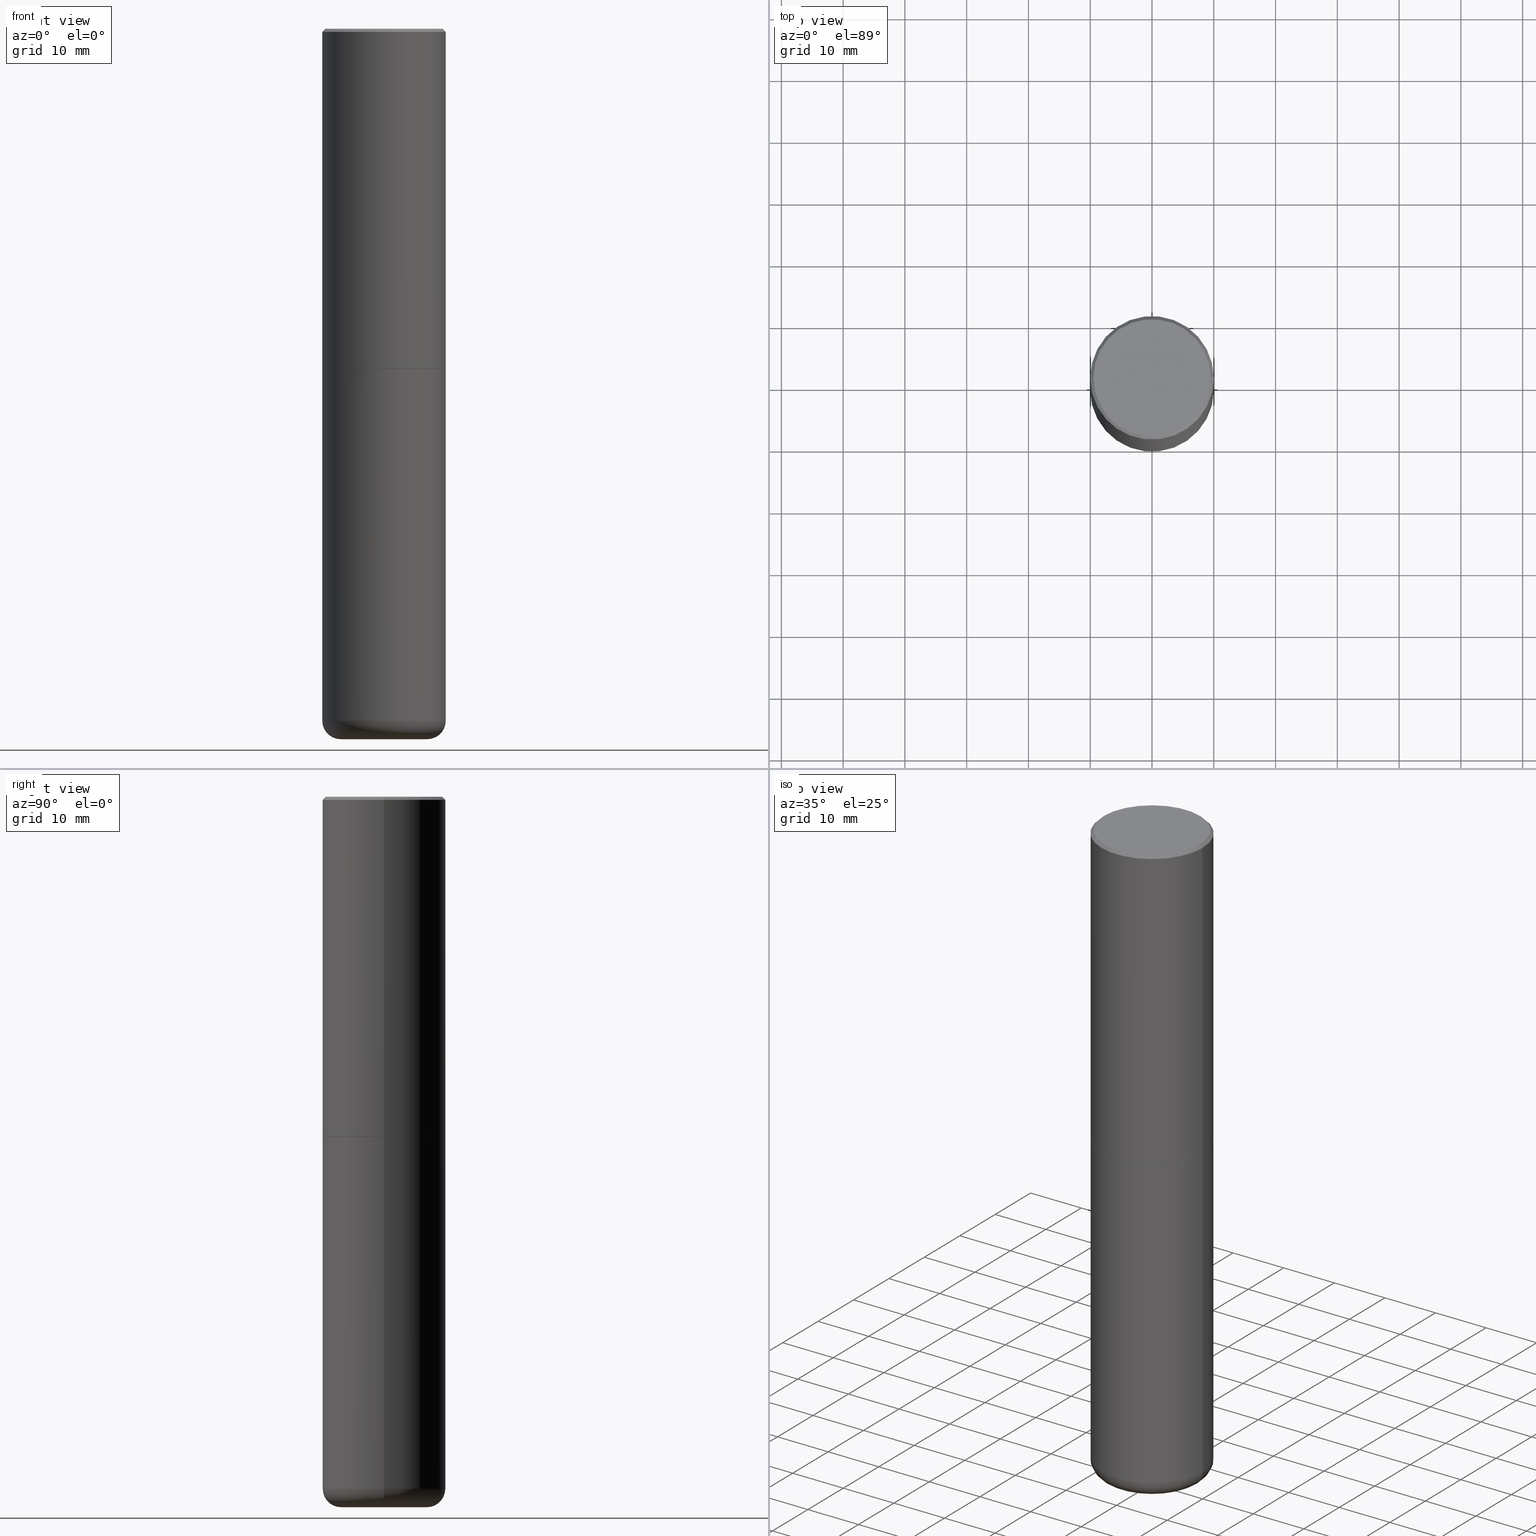
[diagram: canonical four-view strip — front | top / right | iso, engineering-drawing reading convention]
A machine part, canonical four-view strip (front | top / right | iso — engineering-drawing reading convention). The complete STEP part file that produces these views, byte-faithful:
ISO-10303-21;
HEADER;
FILE_DESCRIPTION (( 'STEP AP203' ),
    '1' );
FILE_NAME ('74658.STEP',
    '2024-03-06T15:54:08',
    ( '' ),
    ( '' ),
    'SwSTEP 2.0',
    'SolidWorks 2023',
    '' );
FILE_SCHEMA (( 'CONFIG_CONTROL_DESIGN' ));
ENDSEC;

DATA;
#1 = VECTOR ( 'NONE', #80, 39.37007874015748854 ) ;
#2 = VERTEX_POINT ( 'NONE', #106 ) ;
#3 = DATE_TIME_ROLE ( 'creation_date' ) ;
#4 = ORIENTED_EDGE ( 'NONE', *, *, #368, .F. ) ;
#5 = DIRECTION ( 'NONE',  ( -2.445468806185136597E-29, 3.491481338843145583E-15, 1.000000000000000000 ) ) ;
#6 = PERSON_AND_ORGANIZATION ( #246, #288 ) ;
#7 = CARTESIAN_POINT ( 'NONE',  ( 5.295418152913293224E-29, -7.560453691130945845E-15, -2.165399999999999547 ) ) ;
#8 = VERTEX_POINT ( 'NONE', #70 ) ;
#9 = EDGE_CURVE ( 'NONE', #132, #200, #72, .T. ) ;
#10 = CALENDAR_DATE ( 2024, 6, 3 ) ;
#11 = ORIENTED_EDGE ( 'NONE', *, *, #47, .T. ) ;
#12 = DIRECTION ( 'NONE',  ( -1.000000000000000000, 6.982962677686265922E-15, -4.876176775795935793E-29 ) ) ;
#13 = PERSON_AND_ORGANIZATION_ROLE ( 'design_owner' ) ;
#14 = CARTESIAN_POINT ( 'NONE',  ( 1.078329470087335798E-28, -1.539568696362884818E-14, -4.409499999999999531 ) ) ;
#15 = EDGE_CURVE ( 'NONE', #293, #333, #148, .T. ) ;
#16 =( NAMED_UNIT ( * ) PLANE_ANGLE_UNIT ( ) SI_UNIT ( $, .RADIAN. ) );
#17 = CARTESIAN_POINT ( 'NONE',  ( 0.3926999999999999935, -1.030266313465834305E-14, -2.165399999999999991 ) ) ;
#18 = DIRECTION ( 'NONE',  ( -2.445468806185136597E-29, 3.491481338843145583E-15, 1.000000000000000000 ) ) ;
#19 = CONICAL_SURFACE ( 'NONE', #112, 0.3926999999999999935, 0.7853981633974141952 ) ;
#20 = DIRECTION ( 'NONE',  ( 1.000000000000000000, -6.982962677686266711E-15, 4.875705233642009010E-29 ) ) ;
#21 = DIRECTION ( 'NONE',  ( 1.000000000000000000, -6.982962677686265922E-15, 4.876176775795935793E-29 ) ) ;
#22 = ORIENTED_EDGE ( 'NONE', *, *, #146, .T. ) ;
#23 = AXIS2_PLACEMENT_3D ( 'NONE', #234, #392, #356 ) ;
#24 = DIRECTION ( 'NONE',  ( 1.000000000000000000, -6.982962677686265133E-15, 0.000000000000000000 ) ) ;
#25 = ORIENTED_EDGE ( 'NONE', *, *, #313, .F. ) ;
#26 = DIRECTION ( 'NONE',  ( -6.982962677686266711E-15, -1.000000000000000000, 3.491481338843145583E-15 ) ) ;
#27 = CARTESIAN_POINT ( 'NONE',  ( 1.078329470087335798E-28, -1.539568696362884818E-14, -4.409499999999999531 ) ) ;
#28 = CC_DESIGN_PERSON_AND_ORGANIZATION_ASSIGNMENT ( #291, #390, ( #412 ) ) ;
#29 = DIRECTION ( 'NONE',  ( -2.445468806185136597E-29, 3.491481338843145583E-15, 1.000000000000000000 ) ) ;
#30 = CC_DESIGN_APPROVAL ( #160, ( #250 ) ) ;
#31 = ORIENTED_EDGE ( 'NONE', *, *, #146, .F. ) ;
#32 = CARTESIAN_POINT ( 'NONE',  ( 1.078329470087335798E-28, -1.539568696362884818E-14, -4.409499999999999531 ) ) ;
#33 = VERTEX_POINT ( 'NONE', #214 ) ;
#34 = CARTESIAN_POINT ( 'NONE',  ( 0.3937000000000001609, -2.749192406205084400E-15, 1.919750796630860732E-29 ) ) ;
#35 = ORIENTED_EDGE ( 'NONE', *, *, #76, .T. ) ;
#36 = ORIENTED_EDGE ( 'NONE', *, *, #405, .T. ) ;
#37 = APPLICATION_CONTEXT ( 'configuration controlled 3d designs of mechanical parts and assemblies' ) ;
#38 = CARTESIAN_POINT ( 'NONE',  ( 5.292972684107107621E-29, -7.556962209792102838E-15, -2.164399999999999658 ) ) ;
#39 = CARTESIAN_POINT ( 'NONE',  ( 5.295418152913294345E-29, -7.560453691130947423E-15, -2.165399999999999991 ) ) ;
#40 = DIRECTION ( 'NONE',  ( -2.445468806185136877E-29, 3.491481338843145188E-15, 1.000000000000000000 ) ) ;
#41 = CARTESIAN_POINT ( 'NONE',  ( 5.295418152913294345E-29, -7.560453691130947423E-15, -2.165399999999999991 ) ) ;
#42 = SHAPE_DEFINITION_REPRESENTATION ( #261, #406 ) ;
#43 = FACE_OUTER_BOUND ( 'NONE', #385, .T. ) ;
#44 = AXIS2_PLACEMENT_3D ( 'NONE', #379, #223, #24 ) ;
#45 = LINE ( 'NONE', #109, #345 ) ;
#46 = DIRECTION ( 'NONE',  ( 1.000000000000000000, -6.982962677686265133E-15, 0.000000000000000000 ) ) ;
#47 = EDGE_CURVE ( 'NONE', #255, #33, #178, .T. ) ;
#48 = DIRECTION ( 'NONE',  ( -2.445468806185136877E-29, 3.491481338843145188E-15, 1.000000000000000000 ) ) ;
#49 = DIRECTION ( 'NONE',  ( 1.000000000000000000, -6.982962677686266711E-15, 4.876176775795935793E-29 ) ) ;
#50 = VECTOR ( 'NONE', #338, 39.37007874015748854 ) ;
#51 = LOCAL_TIME ( 10, 54, 8.000000000000000000, #339 ) ;
#52 = FACE_OUTER_BOUND ( 'NONE', #336, .T. ) ;
#53 = ORIENTED_EDGE ( 'NONE', *, *, #170, .T. ) ;
#54 = ADVANCED_FACE ( 'NONE', ( #82 ), #198, .T. ) ;
#55 = VECTOR ( 'NONE', #48, 39.37007874015748143 ) ;
#56 = DIRECTION ( 'NONE',  ( 1.000000000000000000, -6.982962677686265133E-15, 0.000000000000000000 ) ) ;
#57 = DIRECTION ( 'NONE',  ( -2.445468806185136597E-29, 3.491481338843145583E-15, 1.000000000000000000 ) ) ;
#58 = CC_DESIGN_PERSON_AND_ORGANIZATION_ASSIGNMENT ( #177, #142, ( #412 ) ) ;
#59 = ORIENTED_EDGE ( 'NONE', *, *, #405, .F. ) ;
#60 = PERSON_AND_ORGANIZATION_ROLE ( 'classification_officer' ) ;
#61 = CIRCLE ( 'NONE', #300, 0.1180999999999997191 ) ;
#62 = CIRCLE ( 'NONE', #149, 0.3937000000000002720 ) ;
#63 = DIRECTION ( 'NONE',  ( 0.7071067811865469066, -7.319954787623252890E-15, -0.7071067811865479058 ) ) ;
#64 = CARTESIAN_POINT ( 'NONE',  ( 0.2756000000000000116, -1.773253542371655569E-14, -4.527599999999998737 ) ) ;
#65 = ORIENTED_EDGE ( 'NONE', *, *, #151, .F. ) ;
#66 = ORIENTED_EDGE ( 'NONE', *, *, #233, .F. ) ;
#67 = DATE_TIME_ROLE ( 'classification_date' ) ;
#68 = ADVANCED_FACE ( 'NONE', ( #52 ), #378, .T. ) ;
#69 = AXIS2_PLACEMENT_3D ( 'NONE', #295, #5, #298 ) ;
#70 = CARTESIAN_POINT ( 'NONE',  ( 0.3936999999999998834, -1.814487936983393140E-14, -4.409499999999999531 ) ) ;
#71 = APPROVAL_ROLE ( '' ) ;
#72 = LINE ( 'NONE', #211, #193 ) ;
#73 = DIRECTION ( 'NONE',  ( -1.000000000000000000, 6.982962677686265922E-15, 0.000000000000000000 ) ) ;
#74 = DATE_AND_TIME ( #304, #51 ) ;
#75 = EDGE_CURVE ( 'NONE', #2, #132, #61, .T. ) ;
#76 = EDGE_CURVE ( 'NONE', #8, #132, #394, .T. ) ;
#77 = DIRECTION ( 'NONE',  ( 1.000000000000000000, -6.982962677686265922E-15, 0.000000000000000000 ) ) ;
#78 = SECURITY_CLASSIFICATION_LEVEL ( 'unclassified' ) ;
#79 =( NAMED_UNIT ( * ) SI_UNIT ( $, .STERADIAN. ) SOLID_ANGLE_UNIT ( ) );
#80 = DIRECTION ( 'NONE',  ( 0.7071067811865232589, -2.468850131082003836E-15, 0.7071067811865715536 ) ) ;
#81 = AXIS2_PLACEMENT_3D ( 'NONE', #41, #371, #46 ) ;
#82 = FACE_OUTER_BOUND ( 'NONE', #393, .T. ) ;
#83 = CARTESIAN_POINT ( 'NONE',  ( 1.107210456688382074E-28, -1.580803090974622074E-14, -4.527599999999998737 ) ) ;
#84 = ADVANCED_FACE ( 'NONE', ( #89 ), #195, .T. ) ;
#85 = DIRECTION ( 'NONE',  ( -2.445468806185136597E-29, 3.491481338843145583E-15, 1.000000000000000000 ) ) ;
#86 = CIRCLE ( 'NONE', #172, 0.3937000000000000499 ) ;
#87 = EDGE_LOOP ( 'NONE', ( #389, #236, #273, #354 ) ) ;
#88 = DIRECTION ( 'NONE',  ( 1.000000000000000000, -6.982962677686265133E-15, 0.000000000000000000 ) ) ;
#89 = FACE_OUTER_BOUND ( 'NONE', #140, .T. ) ;
#90 = APPROVAL_DATE_TIME ( #199, #160 ) ;
#91 = DIRECTION ( 'NONE',  ( 1.000000000000000000, -6.982962677686265133E-15, 0.000000000000000000 ) ) ;
#92 = CARTESIAN_POINT ( 'NONE',  ( -0.3737000000000000322, 2.644447966039789058E-15, -6.402768735152454409E-17 ) ) ;
#93 = AXIS2_PLACEMENT_3D ( 'NONE', #290, #118, #380 ) ;
#94 = CIRCLE ( 'NONE', #44, 0.3926999999999999935 ) ;
#95 = VERTEX_POINT ( 'NONE', #103 ) ;
#96 = VERTEX_POINT ( 'NONE', #358 ) ;
#97 = DIRECTION ( 'NONE',  ( -2.445468806185136597E-29, 3.491481338843145583E-15, 1.000000000000000000 ) ) ;
#98 = COORDINATED_UNIVERSAL_TIME_OFFSET ( 5, 0, .BEHIND. ) ;
#99 = ORIENTED_EDGE ( 'NONE', *, *, #110, .F. ) ;
#100 = PERSON_AND_ORGANIZATION_ROLE ( 'creator' ) ;
#101 = CC_DESIGN_APPROVAL ( #229, ( #412 ) ) ;
#102 = EDGE_LOOP ( 'NONE', ( #25, #11, #129, #277 ) ) ;
#103 = CARTESIAN_POINT ( 'NONE',  ( -0.3937000000000000499, 2.679362779428219918E-15, -0.02000000000000008715 ) ) ;
#104 = DESIGN_CONTEXT ( 'detailed design', #37, 'design' ) ;
#105 =( CONVERSION_BASED_UNIT ( 'INCH', #276 ) LENGTH_UNIT ( ) NAMED_UNIT ( #145 ) );
#106 = CARTESIAN_POINT ( 'NONE',  ( -0.2756000000000000116, -1.322402767146636311E-14, -4.527599999999998737 ) ) ;
#107 = PLANE ( 'NONE',  #312 ) ;
#108 = PERSON_AND_ORGANIZATION ( #246, #288 ) ;
#109 = CARTESIAN_POINT ( 'NONE',  ( 0.3937000000000000499, -2.749192406205083217E-15, 1.919750796630860172E-29 ) ) ;
#110 = EDGE_CURVE ( 'NONE', #95, #33, #117, .T. ) ;
#111 = DIRECTION ( 'NONE',  ( -2.445468806185136597E-29, 3.491481338843145583E-15, 1.000000000000000000 ) ) ;
#112 = AXIS2_PLACEMENT_3D ( 'NONE', #122, #256, #88 ) ;
#113 = DIRECTION ( 'NONE',  ( -2.445468806185136597E-29, 3.491481338843145583E-15, 1.000000000000000000 ) ) ;
#114 = EDGE_CURVE ( 'NONE', #171, #366, #381, .T. ) ;
#115 = DIRECTION ( 'NONE',  ( -2.445468806185136597E-29, 3.491481338843145583E-15, 1.000000000000000000 ) ) ;
#116 = CARTESIAN_POINT ( 'NONE',  ( 5.292972684107107621E-29, -7.556962209792102838E-15, -2.164399999999999658 ) ) ;
#117 = CIRCLE ( 'NONE', #181, 0.3937000000000000499 ) ;
#118 = DIRECTION ( 'NONE',  ( -2.445468806185136597E-29, 3.491481338843145583E-15, 1.000000000000000000 ) ) ;
#119 = APPLICATION_CONTEXT ( 'configuration controlled 3d designs of mechanical parts and assemblies' ) ;
#120 = CARTESIAN_POINT ( 'NONE',  ( -0.2756000000000000116, -1.343743118387401317E-14, -4.409499999999999531 ) ) ;
#121 = CC_DESIGN_PERSON_AND_ORGANIZATION_ASSIGNMENT ( #230, #100, ( #250 ) ) ;
#122 = CARTESIAN_POINT ( 'NONE',  ( 5.295418152913294345E-29, -7.560453691130947423E-15, -2.165399999999999991 ) ) ;
#123 = DIRECTION ( 'NONE',  ( 1.000000000000000000, -6.982962677686262766E-15, 0.000000000000000000 ) ) ;
#124 = ADVANCED_FACE ( 'NONE', ( #176 ), #201, .T. ) ;
#125 = AXIS2_PLACEMENT_3D ( 'NONE', #135, #330, #73 ) ;
#126 = VERTEX_POINT ( 'NONE', #92 ) ;
#127 = ORIENTED_EDGE ( 'NONE', *, *, #407, .F. ) ;
#128 = FACE_OUTER_BOUND ( 'NONE', #87, .T. ) ;
#129 = ORIENTED_EDGE ( 'NONE', *, *, #257, .T. ) ;
#130 = TOROIDAL_SURFACE ( 'NONE', #248, 0.2756000000000000116, 0.1180999999999997468 ) ;
#131 = AXIS2_PLACEMENT_3D ( 'NONE', #83, #113, #374 ) ;
#132 = VERTEX_POINT ( 'NONE', #215 ) ;
#133 = DIRECTION ( 'NONE',  ( 1.000000000000000000, 0.000000000000000000, 0.000000000000000000 ) ) ;
#134 = ORIENTED_EDGE ( 'NONE', *, *, #383, .T. ) ;
#135 = CARTESIAN_POINT ( 'NONE',  ( 4.890937612370294178E-31, -6.982962677686321191E-17, -0.02000000000000008715 ) ) ;
#136 = APPROVAL_DATE_TIME ( #74, #346 ) ;
#137 = PRODUCT ( '74658', '74658', '', ( #174 ) ) ;
#138 = EDGE_LOOP ( 'NONE', ( #297, #205 ) ) ;
#139 = DIRECTION ( 'NONE',  ( 1.000000000000000000, -6.982962677686265922E-15, 0.000000000000000000 ) ) ;
#140 = EDGE_LOOP ( 'NONE', ( #262, #22, #325, #127 ) ) ;
#141 = CARTESIAN_POINT ( 'NONE',  ( -0.3937000000000003830, -1.015989167596963746E-15, -2.164399999999999658 ) ) ;
#142 = PERSON_AND_ORGANIZATION_ROLE ( 'design_supplier' ) ;
#143 = LINE ( 'NONE', #150, #266 ) ;
#144 = CARTESIAN_POINT ( 'NONE',  ( 1.565777121502829671E-45, -2.235514755570671047E-31, -6.402768735150616610E-17 ) ) ;
#145 = DIMENSIONAL_EXPONENTS ( 1.000000000000000000, 0.000000000000000000, 0.000000000000000000, 0.000000000000000000, 0.000000000000000000, 0.000000000000000000, 0.000000000000000000 ) ;
#146 = EDGE_CURVE ( 'NONE', #132, #8, #340, .T. ) ;
#147 = CARTESIAN_POINT ( 'NONE',  ( 1.733990391732979190E-28, -6.832185498923057657E-15, -4.527599999999998737 ) ) ;
#148 = CIRCLE ( 'NONE', #322, 0.3937000000000002720 ) ;
#149 = AXIS2_PLACEMENT_3D ( 'NONE', #116, #350, #317 ) ;
#150 = CARTESIAN_POINT ( 'NONE',  ( -0.3937000000000000499, 2.679362779428219918E-15, -0.02000000000000008715 ) ) ;
#151 = EDGE_CURVE ( 'NONE', #167, #2, #209, .T. ) ;
#152 = ADVANCED_FACE ( 'NONE', ( #128 ), #188, .T. ) ;
#153 = APPLICATION_PROTOCOL_DEFINITION ( 'international standard', 'config_control_design', 1994, #119 ) ;
#154 = CARTESIAN_POINT ( 'NONE',  ( 5.295418152913293224E-29, -7.560453691130945845E-15, -2.165399999999999547 ) ) ;
#155 = ORIENTED_EDGE ( 'NONE', *, *, #257, .F. ) ;
#156 = AXIS2_PLACEMENT_3D ( 'NONE', #32, #302, #168 ) ;
#157 = APPROVAL_PERSON_ORGANIZATION ( #6, #229, #269 ) ;
#158 = EDGE_LOOP ( 'NONE', ( #65, #415 ) ) ;
#159 = DIRECTION ( 'NONE',  ( -2.445468806185136597E-29, 3.491481338843145583E-15, 1.000000000000000000 ) ) ;
#160 = APPROVAL ( #370, 'UNSPECIFIED' ) ;
#161 = DIRECTION ( 'NONE',  ( 0.000000000000000000, 0.000000000000000000, 1.000000000000000000 ) ) ;
#162 = APPLICATION_PROTOCOL_DEFINITION ( 'international standard', 'config_control_design', 1994, #37 ) ;
#163 = DIRECTION ( 'NONE',  ( 1.000000000000000000, -6.982962677686265922E-15, 4.876176775795935793E-29 ) ) ;
#164 = AXIS2_PLACEMENT_3D ( 'NONE', #27, #159, #123 ) ;
#165 = APPROVAL_PERSON_ORGANIZATION ( #274, #346, #334 ) ;
#166 = PERSON_AND_ORGANIZATION ( #246, #288 ) ;
#167 = VERTEX_POINT ( 'NONE', #64 ) ;
#168 = DIRECTION ( 'NONE',  ( 1.000000000000000000, -6.982962677686262766E-15, 0.000000000000000000 ) ) ;
#169 = ORIENTED_EDGE ( 'NONE', *, *, #289, .T. ) ;
#170 = EDGE_CURVE ( 'NONE', #293, #33, #204, .T. ) ;
#171 = VERTEX_POINT ( 'NONE', #418 ) ;
#172 = AXIS2_PLACEMENT_3D ( 'NONE', #251, #111, #77 ) ;
#173 = EDGE_LOOP ( 'NONE', ( #238, #327, #264, #301 ) ) ;
#174 = MECHANICAL_CONTEXT ( 'NONE', #119, 'mechanical' ) ;
#175 = DIRECTION ( 'NONE',  ( -2.445468806185136597E-29, 3.491481338843145583E-15, 1.000000000000000000 ) ) ;
#176 = FACE_OUTER_BOUND ( 'NONE', #102, .T. ) ;
#177 = PERSON_AND_ORGANIZATION ( #246, #288 ) ;
#178 = LINE ( 'NONE', #355, #308 ) ;
#179 = DIRECTION ( 'NONE',  ( -2.445468806185136877E-29, 3.491481338843145188E-15, 1.000000000000000000 ) ) ;
#180 = EDGE_CURVE ( 'NONE', #171, #333, #265, .T. ) ;
#181 = AXIS2_PLACEMENT_3D ( 'NONE', #212, #97, #139 ) ;
#182 = DIRECTION ( 'NONE',  ( -2.445468806185136597E-29, 3.491481338843145583E-15, 1.000000000000000000 ) ) ;
#183 = PLANE ( 'NONE',  #411 ) ;
#184 = ADVANCED_FACE ( 'NONE', ( #219 ), #130, .T. ) ;
#185 = LINE ( 'NONE', #309, #55 ) ;
#186 = PLANE ( 'NONE',  #283 ) ;
#187 = CARTESIAN_POINT ( 'NONE',  ( 1.565777121502829671E-45, -2.235514755570671047E-31, -6.402768735150616610E-17 ) ) ;
#188 = CONICAL_SURFACE ( 'NONE', #23, 0.3937000000000000499, 0.7853981633974476129 ) ;
#189 = LOCAL_TIME ( 10, 54, 8.000000000000000000, #352 ) ;
#190 = DIRECTION ( 'NONE',  ( -2.438088387897960049E-29, 3.491481338843145188E-15, 1.000000000000000000 ) ) ;
#191 = ORIENTED_EDGE ( 'NONE', *, *, #9, .T. ) ;
#192 = ADVANCED_FACE ( 'NONE', ( #311 ), #183, .F. ) ;
#193 = VECTOR ( 'NONE', #40, 39.37007874015748143 ) ;
#194 = CARTESIAN_POINT ( 'NONE',  ( 0.2756000000000000116, -1.732019147759918314E-14, -4.409499999999999531 ) ) ;
#195 = CYLINDRICAL_SURFACE ( 'NONE', #316, 0.3937000000000000499 ) ;
#196 = CARTESIAN_POINT ( 'NONE',  ( 5.295418152913294345E-29, -7.560453691130947423E-15, -2.165399999999999991 ) ) ;
#197 = ORIENTED_EDGE ( 'NONE', *, *, #15, .F. ) ;
#198 = CYLINDRICAL_SURFACE ( 'NONE', #93, 0.3937000000000000499 ) ;
#199 = DATE_AND_TIME ( #307, #267 ) ;
#200 = VERTEX_POINT ( 'NONE', #282 ) ;
#201 = CONICAL_SURFACE ( 'NONE', #125, 0.3937000000000000499, 0.7853981633974476129 ) ;
#202 = CC_DESIGN_SECURITY_CLASSIFICATION ( #388, ( #412 ) ) ;
#203 = ORIENTED_EDGE ( 'NONE', *, *, #114, .F. ) ;
#204 = LINE ( 'NONE', #34, #363 ) ;
#205 = ORIENTED_EDGE ( 'NONE', *, *, #313, .T. ) ;
#206 = ORIENTED_EDGE ( 'NONE', *, *, #353, .T. ) ;
#207 = DIRECTION ( 'NONE',  ( -2.445468806185136597E-29, 3.491481338843145583E-15, 1.000000000000000000 ) ) ;
#208 = PERSON_AND_ORGANIZATION ( #246, #288 ) ;
#209 = CIRCLE ( 'NONE', #69, 0.2756000000000000116 ) ;
#210 =( GEOMETRIC_REPRESENTATION_CONTEXT ( 3 ) GLOBAL_UNCERTAINTY_ASSIGNED_CONTEXT ( ( #231 ) ) GLOBAL_UNIT_ASSIGNED_CONTEXT ( ( #105, #16, #79 ) ) REPRESENTATION_CONTEXT ( 'NONE', 'WORKASPACE' ) );
#211 = CARTESIAN_POINT ( 'NONE',  ( -0.3937000000000000499, 2.797406750687514786E-15, -1.936584745033356735E-29 ) ) ;
#212 = CARTESIAN_POINT ( 'NONE',  ( 4.890937612370294178E-31, -6.982962677686321191E-17, -0.02000000000000008715 ) ) ;
#213 = ADVANCED_FACE ( 'NONE', ( #373 ), #275, .T. ) ;
#214 = CARTESIAN_POINT ( 'NONE',  ( 0.3937000000000000499, -2.770807688499515734E-15, -0.02000000000000008715 ) ) ;
#215 = CARTESIAN_POINT ( 'NONE',  ( -0.3936999999999998834, -1.259828021294133576E-14, -4.409499999999999531 ) ) ;
#216 = DIRECTION ( 'NONE',  ( 1.000000000000000000, -6.982962677686268288E-15, 4.883557194083112901E-29 ) ) ;
#217 = DATE_AND_TIME ( #237, #226 ) ;
#218 = CIRCLE ( 'NONE', #365, 0.1180999999999997191 ) ;
#219 = FACE_OUTER_BOUND ( 'NONE', #270, .T. ) ;
#220 = DIRECTION ( 'NONE',  ( 1.000000000000000000, -6.982962677686266711E-15, 4.875705233642009010E-29 ) ) ;
#221 = CARTESIAN_POINT ( 'NONE',  ( 0.3937000000000002720, -1.030615461599718763E-14, -2.164399999999999658 ) ) ;
#222 = CARTESIAN_POINT ( 'NONE',  ( 0.3926999999999999935, -1.030266313465834305E-14, -2.165399999999999991 ) ) ;
#223 = DIRECTION ( 'NONE',  ( -2.445468806185136597E-29, 3.491481338843145583E-15, 1.000000000000000000 ) ) ;
#224 = ORIENTED_EDGE ( 'NONE', *, *, #407, .T. ) ;
#225 = CARTESIAN_POINT ( 'NONE',  ( 0.000000000000000000, 0.000000000000000000, 0.000000000000000000 ) ) ;
#226 = LOCAL_TIME ( 10, 54, 8.000000000000000000, #98 ) ;
#227 = ADVANCED_FACE ( 'NONE', ( #43 ), #386, .T. ) ;
#228 = DIRECTION ( 'NONE',  ( -2.445468806185136597E-29, 3.491481338843145583E-15, 1.000000000000000000 ) ) ;
#229 = APPROVAL ( #244, 'UNSPECIFIED' ) ;
#230 = PERSON_AND_ORGANIZATION ( #246, #288 ) ;
#231 = UNCERTAINTY_MEASURE_WITH_UNIT (LENGTH_MEASURE( 1.000000000000000082E-05 ), #105, 'distance_accuracy_value', 'NONE');
#232 = EDGE_CURVE ( 'NONE', #126, #95, #143, .T. ) ;
#233 = EDGE_CURVE ( 'NONE', #8, #96, #45, .T. ) ;
#234 = CARTESIAN_POINT ( 'NONE',  ( 4.890937612370294178E-31, -6.982962677686321191E-17, -0.02000000000000008715 ) ) ;
#235 = ORIENTED_EDGE ( 'NONE', *, *, #410, .F. ) ;
#236 = ORIENTED_EDGE ( 'NONE', *, *, #271, .F. ) ;
#237 = CALENDAR_DATE ( 2024, 6, 3 ) ;
#238 = ORIENTED_EDGE ( 'NONE', *, *, #180, .F. ) ;
#239 = EDGE_CURVE ( 'NONE', #366, #293, #310, .T. ) ;
#240 = AXIS2_PLACEMENT_3D ( 'NONE', #154, #29, #56 ) ;
#241 = DIRECTION ( 'NONE',  ( 1.000000000000000000, -6.982962677686269077E-15, 0.000000000000000000 ) ) ;
#242 = DIRECTION ( 'NONE',  ( 1.000000000000000000, -6.982962677686265133E-15, 0.000000000000000000 ) ) ;
#243 = MANIFOLD_SOLID_BREP ( 'Body-Move/Copy2[1]', #348 ) ;
#244 = APPROVAL_STATUS ( 'not_yet_approved' ) ;
#245 = FACE_OUTER_BOUND ( 'NONE', #268, .T. ) ;
#246 = PERSON ( 'UNSPECIFIED', 'UNSPECIFIED', 'UNSPECIFIED', ('UNSPECIFIED'), ('UNSPECIFIED'), ('UNSPECIFIED') ) ;
#247 = DIRECTION ( 'NONE',  ( 1.000000000000000000, -6.982962677686268288E-15, 4.883557194083112901E-29 ) ) ;
#248 = AXIS2_PLACEMENT_3D ( 'NONE', #397, #115, #216 ) ;
#249 = AXIS2_PLACEMENT_3D ( 'NONE', #7, #272, #91 ) ;
#250 = PRODUCT_DEFINITION ( 'UNKNOWN', '', #412, #104 ) ;
#251 = CARTESIAN_POINT ( 'NONE',  ( 4.890937612370294178E-31, -6.982962677686321191E-17, -0.02000000000000008715 ) ) ;
#252 = CARTESIAN_POINT ( 'NONE',  ( 5.295418152913293224E-29, -7.560453691130945845E-15, -2.165399999999999547 ) ) ;
#253 = AXIS2_PLACEMENT_3D ( 'NONE', #39, #207, #242 ) ;
#254 = AXIS2_PLACEMENT_3D ( 'NONE', #344, #85, #49 ) ;
#255 = VERTEX_POINT ( 'NONE', #400 ) ;
#256 = DIRECTION ( 'NONE',  ( -2.445468806185136597E-29, 3.491481338843145583E-15, 1.000000000000000000 ) ) ;
#257 = EDGE_CURVE ( 'NONE', #33, #95, #86, .T. ) ;
#258 = DIRECTION ( 'NONE',  ( -1.000000000000000000, 7.105427357601005014E-15, 0.000000000000000000 ) ) ;
#259 = CIRCLE ( 'NONE', #131, 0.2756000000000000116 ) ;
#260 = COORDINATED_UNIVERSAL_TIME_OFFSET ( 5, 0, .BEHIND. ) ;
#261 = PRODUCT_DEFINITION_SHAPE ( 'NONE', 'NONE',  #250 ) ;
#262 = ORIENTED_EDGE ( 'NONE', *, *, #9, .F. ) ;
#263 = ORIENTED_EDGE ( 'NONE', *, *, #151, .T. ) ;
#264 = ORIENTED_EDGE ( 'NONE', *, *, #239, .T. ) ;
#265 = LINE ( 'NONE', #337, #50 ) ;
#266 = VECTOR ( 'NONE', #398, 39.37007874015748854 ) ;
#267 = LOCAL_TIME ( 10, 54, 8.000000000000000000, #260 ) ;
#268 = EDGE_LOOP ( 'NONE', ( #396, #357, #155, #362 ) ) ;
#269 = APPROVAL_ROLE ( '' ) ;
#270 = EDGE_LOOP ( 'NONE', ( #263, #417, #359, #59 ) ) ;
#271 = EDGE_CURVE ( 'NONE', #126, #255, #401, .T. ) ;
#272 = DIRECTION ( 'NONE',  ( -2.445468806185136597E-29, 3.491481338843145583E-15, 1.000000000000000000 ) ) ;
#273 = ORIENTED_EDGE ( 'NONE', *, *, #232, .T. ) ;
#274 = PERSON_AND_ORGANIZATION ( #246, #288 ) ;
#275 = TOROIDAL_SURFACE ( 'NONE', #292, 0.2756000000000000116, 0.1180999999999997468 ) ;
#276 = LENGTH_MEASURE_WITH_UNIT ( LENGTH_MEASURE( 0.02539999999999999897 ), #335 );
#277 = ORIENTED_EDGE ( 'NONE', *, *, #232, .F. ) ;
#278 = FACE_OUTER_BOUND ( 'NONE', #329, .T. ) ;
#279 = CALENDAR_DATE ( 2024, 6, 3 ) ;
#280 = CC_DESIGN_PERSON_AND_ORGANIZATION_ASSIGNMENT ( #108, #13, ( #137 ) ) ;
#281 = CARTESIAN_POINT ( 'NONE',  ( 2.609533152651357803E-15, 0.3737000000000000322, -1.336780420001436835E-15 ) ) ;
#282 = CARTESIAN_POINT ( 'NONE',  ( -0.3937000000000000499, -8.680663576692383017E-15, -2.165399999999999547 ) ) ;
#283 = AXIS2_PLACEMENT_3D ( 'NONE', #147, #284, #403 ) ;
#284 = DIRECTION ( 'NONE',  ( 2.438088387897960049E-29, -3.491481338843145188E-15, -1.000000000000000000 ) ) ;
#285 = FACE_OUTER_BOUND ( 'NONE', #416, .T. ) ;
#286 = ADVANCED_FACE ( 'NONE', ( #342 ), #186, .T. ) ;
#287 = CLOSED_SHELL ( 'NONE', ( #227, #296, #124, #152, #68, #399, #343, #192 ) ) ;
#288 = ORGANIZATION ( 'UNSPECIFIED', 'UNSPECIFIED', '' ) ;
#289 = EDGE_CURVE ( 'NONE', #2, #167, #259, .T. ) ;
#290 = CARTESIAN_POINT ( 'NONE',  ( 0.000000000000000000, 0.000000000000000000, 0.000000000000000000 ) ) ;
#291 = PERSON_AND_ORGANIZATION ( #246, #288 ) ;
#292 = AXIS2_PLACEMENT_3D ( 'NONE', #14, #182, #247 ) ;
#293 = VERTEX_POINT ( 'NONE', #221 ) ;
#294 = CIRCLE ( 'NONE', #240, 0.3937000000000000499 ) ;
#295 = CARTESIAN_POINT ( 'NONE',  ( 1.107210456688382074E-28, -1.580803090974622074E-14, -4.527599999999998737 ) ) ;
#296 = ADVANCED_FACE ( 'NONE', ( #245 ), #375, .T. ) ;
#297 = ORIENTED_EDGE ( 'NONE', *, *, #271, .T. ) ;
#298 = DIRECTION ( 'NONE',  ( 1.000000000000000000, -6.982962677686265922E-15, 0.000000000000000000 ) ) ;
#299 = EDGE_LOOP ( 'NONE', ( #305, #169, #36, #31 ) ) ;
#300 = AXIS2_PLACEMENT_3D ( 'NONE', #120, #319, #258 ) ;
#301 = ORIENTED_EDGE ( 'NONE', *, *, #353, .F. ) ;
#302 = DIRECTION ( 'NONE',  ( -2.445468806185136597E-29, 3.491481338843145583E-15, 1.000000000000000000 ) ) ;
#303 = ORIENTED_EDGE ( 'NONE', *, *, #239, .F. ) ;
#304 = CALENDAR_DATE ( 2024, 6, 3 ) ;
#305 = ORIENTED_EDGE ( 'NONE', *, *, #75, .F. ) ;
#306 = DIRECTION ( 'NONE',  ( 2.438088387897960049E-29, -3.491481338843145188E-15, -1.000000000000000000 ) ) ;
#307 = CALENDAR_DATE ( 2024, 6, 3 ) ;
#308 = VECTOR ( 'NONE', #63, 39.37007874015748854 ) ;
#309 = CARTESIAN_POINT ( 'NONE',  ( -0.3937000000000001609, 2.797406750687515575E-15, -1.936584745033357296E-29 ) ) ;
#310 = LINE ( 'NONE', #17, #1 ) ;
#311 = FACE_OUTER_BOUND ( 'NONE', #138, .T. ) ;
#312 = AXIS2_PLACEMENT_3D ( 'NONE', #196, #190, #21 ) ;
#313 = EDGE_CURVE ( 'NONE', #255, #126, #413, .T. ) ;
#314 = DIRECTION ( 'NONE',  ( -2.445468806185136597E-29, 3.491481338843145583E-15, 1.000000000000000000 ) ) ;
#315 = PRODUCT_RELATED_PRODUCT_CATEGORY ( 'detail', '', ( #137 ) ) ;
#316 = AXIS2_PLACEMENT_3D ( 'NONE', #225, #57, #163 ) ;
#317 = DIRECTION ( 'NONE',  ( 1.000000000000000000, -6.982962677686269077E-15, 0.000000000000000000 ) ) ;
#318 = AXIS2_PLACEMENT_3D ( 'NONE', #187, #314, #20 ) ;
#319 = DIRECTION ( 'NONE',  ( 7.105427357601001859E-15, 1.000000000000000000, -3.491481338843145583E-15 ) ) ;
#320 = CARTESIAN_POINT ( 'NONE',  ( 0.000000000000000000, 0.000000000000000000, 0.000000000000000000 ) ) ;
#321 = COORDINATED_UNIVERSAL_TIME_OFFSET ( 5, 0, .BEHIND. ) ;
#322 = AXIS2_PLACEMENT_3D ( 'NONE', #38, #175, #241 ) ;
#323 = ORIENTED_EDGE ( 'NONE', *, *, #180, .T. ) ;
#324 = DIRECTION ( 'NONE',  ( 1.000000000000000000, -6.982962677686273021E-15, 0.000000000000000000 ) ) ;
#325 = ORIENTED_EDGE ( 'NONE', *, *, #233, .T. ) ;
#326 = DIRECTION ( 'NONE',  ( -2.445468806185136877E-29, 3.491481338843145188E-15, 1.000000000000000000 ) ) ;
#327 = ORIENTED_EDGE ( 'NONE', *, *, #114, .T. ) ;
#328 = ADVANCED_FACE ( 'NONE', ( #285 ), #404, .F. ) ;
#329 = EDGE_LOOP ( 'NONE', ( #391, #203 ) ) ;
#330 = DIRECTION ( 'NONE',  ( 2.445468806185136597E-29, -3.491481338843145583E-15, -1.000000000000000000 ) ) ;
#331 = DATE_AND_TIME ( #10, #189 ) ;
#332 = CC_DESIGN_PERSON_AND_ORGANIZATION_ASSIGNMENT ( #208, #60, ( #388 ) ) ;
#333 = VERTEX_POINT ( 'NONE', #141 ) ;
#334 = APPROVAL_ROLE ( '' ) ;
#335 =( LENGTH_UNIT ( ) NAMED_UNIT ( * ) SI_UNIT ( $, .METRE. ) );
#336 = EDGE_LOOP ( 'NONE', ( #235, #206, #53, #99 ) ) ;
#337 = CARTESIAN_POINT ( 'NONE',  ( -0.3926999999999999935, -4.770152367801032856E-15, -2.165399999999999991 ) ) ;
#338 = DIRECTION ( 'NONE',  ( -0.7071067811865232589, 7.493145998870265808E-15, 0.7071067811865715536 ) ) ;
#339 = COORDINATED_UNIVERSAL_TIME_OFFSET ( 5, 0, .BEHIND. ) ;
#340 = CIRCLE ( 'NONE', #156, 0.3937000000000000499 ) ;
#341 = DIRECTION ( 'NONE',  ( 2.438088387897960049E-29, -3.491481338843145188E-15, -1.000000000000000000 ) ) ;
#342 = FACE_OUTER_BOUND ( 'NONE', #158, .T. ) ;
#343 = ADVANCED_FACE ( 'NONE', ( #278 ), #107, .F. ) ;
#344 = CARTESIAN_POINT ( 'NONE',  ( 0.000000000000000000, 0.000000000000000000, 0.000000000000000000 ) ) ;
#345 = VECTOR ( 'NONE', #179, 39.37007874015748143 ) ;
#346 = APPROVAL ( #367, 'UNSPECIFIED' ) ;
#347 = AXIS2_PLACEMENT_3D ( 'NONE', #320, #161, #133 ) ;
#348 = CLOSED_SHELL ( 'NONE', ( #54, #184, #328, #84, #213, #286 ) ) ;
#349 = CC_DESIGN_APPROVAL ( #346, ( #388 ) ) ;
#350 = DIRECTION ( 'NONE',  ( -2.445468806185136597E-29, 3.491481338843145583E-15, 1.000000000000000000 ) ) ;
#351 = DIRECTION ( 'NONE',  ( 1.000000000000000000, -6.982962677686266711E-15, 4.876176775795935793E-29 ) ) ;
#352 = COORDINATED_UNIVERSAL_TIME_OFFSET ( 5, 0, .BEHIND. ) ;
#353 = EDGE_CURVE ( 'NONE', #333, #293, #62, .T. ) ;
#354 = ORIENTED_EDGE ( 'NONE', *, *, #110, .T. ) ;
#355 = CARTESIAN_POINT ( 'NONE',  ( 0.3937000000000000499, -2.770807688499515734E-15, -0.02000000000000008715 ) ) ;
#356 = DIRECTION ( 'NONE',  ( -1.000000000000000000, 6.982962677686265922E-15, 0.000000000000000000 ) ) ;
#357 = ORIENTED_EDGE ( 'NONE', *, *, #410, .T. ) ;
#358 = CARTESIAN_POINT ( 'NONE',  ( 0.3937000000000000499, -1.030964609733602906E-14, -2.165399999999999547 ) ) ;
#359 = ORIENTED_EDGE ( 'NONE', *, *, #76, .F. ) ;
#360 = CC_DESIGN_DATE_AND_TIME_ASSIGNMENT ( #331, #3, ( #250 ) ) ;
#361 = DATE_AND_TIME ( #279, #402 ) ;
#362 = ORIENTED_EDGE ( 'NONE', *, *, #170, .F. ) ;
#363 = VECTOR ( 'NONE', #326, 39.37007874015748143 ) ;
#364 = AXIS2_PLACEMENT_3D ( 'NONE', #408, #228, #351 ) ;
#365 = AXIS2_PLACEMENT_3D ( 'NONE', #194, #26, #324 ) ;
#366 = VERTEX_POINT ( 'NONE', #222 ) ;
#367 = APPROVAL_STATUS ( 'not_yet_approved' ) ;
#368 = EDGE_CURVE ( 'NONE', #96, #200, #294, .T. ) ;
#369 = DIRECTION ( 'NONE',  ( -1.000000000000000000, 6.982962677686265922E-15, -4.876176775795935793E-29 ) ) ;
#370 = APPROVAL_STATUS ( 'not_yet_approved' ) ;
#371 = DIRECTION ( 'NONE',  ( -2.445468806185136597E-29, 3.491481338843145583E-15, 1.000000000000000000 ) ) ;
#372 = APPROVAL_PERSON_ORGANIZATION ( #166, #160, #71 ) ;
#373 = FACE_OUTER_BOUND ( 'NONE', #299, .T. ) ;
#374 = DIRECTION ( 'NONE',  ( 1.000000000000000000, -6.982962677686265922E-15, 0.000000000000000000 ) ) ;
#375 = CYLINDRICAL_SURFACE ( 'NONE', #254, 0.3937000000000001609 ) ;
#376 = MANIFOLD_SOLID_BREP ( 'Body-Move/Copy2[2]', #287 ) ;
#377 = AXIS2_PLACEMENT_3D ( 'NONE', #252, #306, #12 ) ;
#378 = CYLINDRICAL_SURFACE ( 'NONE', #364, 0.3937000000000001609 ) ;
#379 = CARTESIAN_POINT ( 'NONE',  ( 5.295418152913294345E-29, -7.560453691130947423E-15, -2.165399999999999991 ) ) ;
#380 = DIRECTION ( 'NONE',  ( 1.000000000000000000, -6.982962677686265922E-15, 4.876176775795935793E-29 ) ) ;
#381 = CIRCLE ( 'NONE', #253, 0.3926999999999999935 ) ;
#382 = CIRCLE ( 'NONE', #249, 0.3937000000000000499 ) ;
#383 = EDGE_CURVE ( 'NONE', #366, #171, #94, .T. ) ;
#384 = APPROVAL_DATE_TIME ( #361, #229 ) ;
#385 = EDGE_LOOP ( 'NONE', ( #134, #323, #197, #303 ) ) ;
#386 = CONICAL_SURFACE ( 'NONE', #81, 0.3926999999999999935, 0.7853981633974141952 ) ;
#387 = ORIENTED_EDGE ( 'NONE', *, *, #368, .T. ) ;
#388 = SECURITY_CLASSIFICATION ( '', '', #78 ) ;
#389 = ORIENTED_EDGE ( 'NONE', *, *, #47, .F. ) ;
#390 = PERSON_AND_ORGANIZATION_ROLE ( 'creator' ) ;
#391 = ORIENTED_EDGE ( 'NONE', *, *, #383, .F. ) ;
#392 = DIRECTION ( 'NONE',  ( 2.445468806185136597E-29, -3.491481338843145583E-15, -1.000000000000000000 ) ) ;
#393 = EDGE_LOOP ( 'NONE', ( #35, #191, #4, #66 ) ) ;
#394 = CIRCLE ( 'NONE', #164, 0.3937000000000000499 ) ;
#395 = AXIS2_PLACEMENT_3D ( 'NONE', #144, #18, #220 ) ;
#396 = ORIENTED_EDGE ( 'NONE', *, *, #15, .T. ) ;
#397 = CARTESIAN_POINT ( 'NONE',  ( 1.078329470087335798E-28, -1.539568696362884818E-14, -4.409499999999999531 ) ) ;
#398 = DIRECTION ( 'NONE',  ( -0.7071067811865469066, 2.468850131082251144E-15, -0.7071067811865479058 ) ) ;
#399 = ADVANCED_FACE ( 'NONE', ( #409 ), #19, .T. ) ;
#400 = CARTESIAN_POINT ( 'NONE',  ( 0.3737000000000000322, -2.667287895133368753E-15, -6.402768735148772648E-17 ) ) ;
#401 = CIRCLE ( 'NONE', #395, 0.3737000000000000322 ) ;
#402 = LOCAL_TIME ( 10, 54, 8.000000000000000000, #321 ) ;
#403 = DIRECTION ( 'NONE',  ( -1.000000000000000000, 6.982962677686265922E-15, -4.876176775795935793E-29 ) ) ;
#404 = PLANE ( 'NONE',  #377 ) ;
#405 = EDGE_CURVE ( 'NONE', #167, #8, #218, .T. ) ;
#406 = ADVANCED_BREP_SHAPE_REPRESENTATION ( '74658', ( #243, #376, #347 ), #210 ) ;
#407 = EDGE_CURVE ( 'NONE', #200, #96, #382, .T. ) ;
#408 = CARTESIAN_POINT ( 'NONE',  ( 0.000000000000000000, 0.000000000000000000, 0.000000000000000000 ) ) ;
#409 = FACE_OUTER_BOUND ( 'NONE', #173, .T. ) ;
#410 = EDGE_CURVE ( 'NONE', #333, #95, #185, .T. ) ;
#411 = AXIS2_PLACEMENT_3D ( 'NONE', #281, #341, #369 ) ;
#412 = PRODUCT_DEFINITION_FORMATION_WITH_SPECIFIED_SOURCE ( 'ANY', '', #137, .NOT_KNOWN. ) ;
#413 = CIRCLE ( 'NONE', #318, 0.3737000000000000322 ) ;
#414 = CC_DESIGN_DATE_AND_TIME_ASSIGNMENT ( #217, #67, ( #388 ) ) ;
#415 = ORIENTED_EDGE ( 'NONE', *, *, #289, .F. ) ;
#416 = EDGE_LOOP ( 'NONE', ( #387, #224 ) ) ;
#417 = ORIENTED_EDGE ( 'NONE', *, *, #75, .T. ) ;
#418 = CARTESIAN_POINT ( 'NONE',  ( -0.3926999999999999935, -4.764853913452810454E-15, -2.165399999999999991 ) ) ;
ENDSEC;
END-ISO-10303-21;
